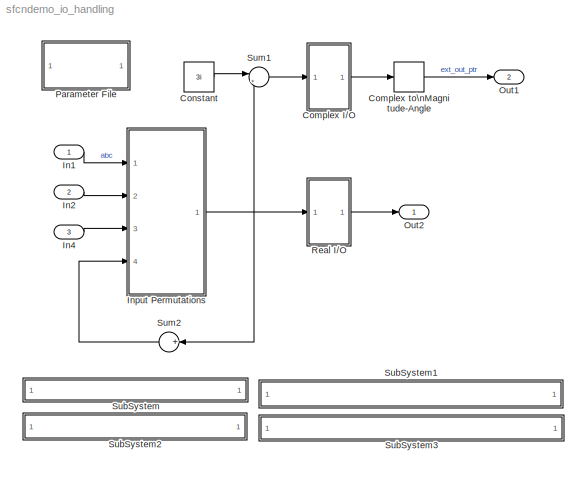
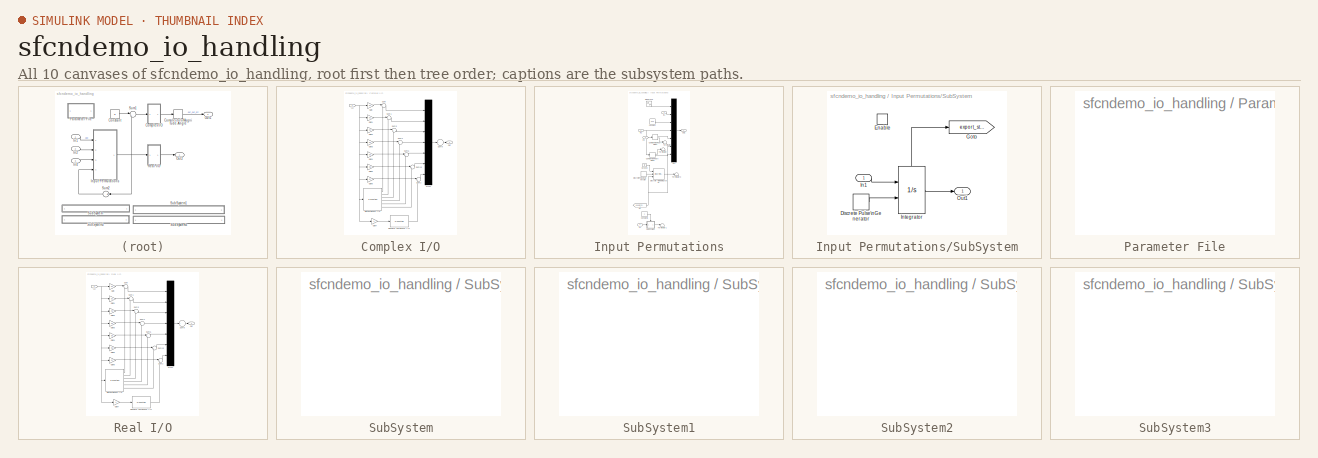
[diagram: thumbnail index - all 10 canvases of the model, root first then tree order]
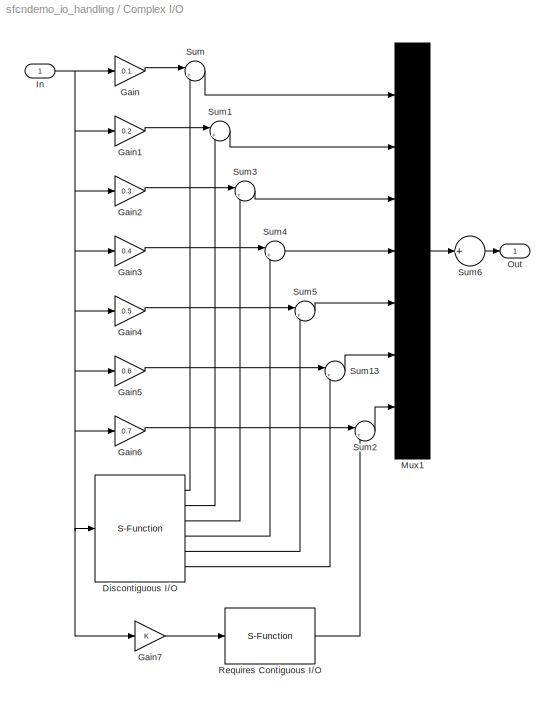
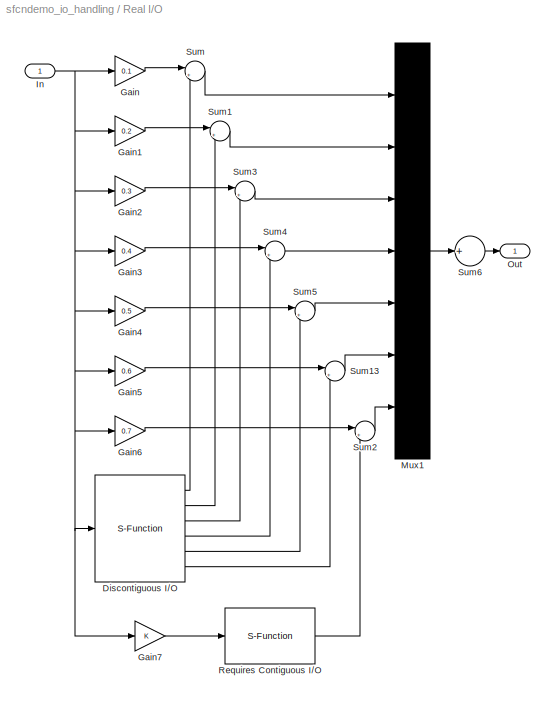
MODEL sfcndemo_io_handling
KIND model
CONFIG PreLoadFcn = t=0;u=[1 2 3 4 5 0 0 0 0 0 0 0 0 0 0];
BLOCK [SubSystem] Complex I//O
  MinAlgLoopOccurrences = off
  Ports = [1, 1]
  PropExecContextAcrossSSBoundary = on
  RTWSystemCode = Auto
  TreatAsAtomicUnit = off
BLOCK [S-Function] Complex I//O/Discontiguous I//O
  FunctionName = sfun_io_handling1
  Ports = [1, 6]
BLOCK [Gain] Complex I//O/Gain
  Gain = 0.1
BLOCK [Gain] Complex I//O/Gain1
  Gain = 0.2
BLOCK [Gain] Complex I//O/Gain2
  Gain = 0.3
BLOCK [Gain] Complex I//O/Gain3
  Gain = 0.4
BLOCK [Gain] Complex I//O/Gain4
  Gain = 0.5
BLOCK [Gain] Complex I//O/Gain5
  Gain = 0.6
BLOCK [Gain] Complex I//O/Gain6
  Gain = 0.7
BLOCK [Gain] Complex I//O/Gain7
BLOCK [Inport] Complex I//O/In
  IconDisplay = Port number
  LatchInput = off
  Port = 1
BLOCK [Mux] Complex I//O/Mux1
  DisplayOption = bar
  Inputs = 7
  Ports = [7, 1]
BLOCK [Outport] Complex I//O/Out
  IconDisplay = Port number
BLOCK [S-Function] Complex I//O/Requires Contiguous I//O
  FunctionName = sfun_io_handling2
  Ports = [1, 1]
BLOCK [Sum] Complex I//O/Sum
  IconShape = round
  Inputs = |+-
  Ports = [2, 1]
BLOCK [Sum] Complex I//O/Sum1
  IconShape = round
  Inputs = |+-
  Ports = [2, 1]
BLOCK [Sum] Complex I//O/Sum13
  IconShape = round
  Inputs = |+-
  Ports = [2, 1]
BLOCK [Sum] Complex I//O/Sum2
  IconShape = round
  Inputs = |+-
  Ports = [2, 1]
BLOCK [Sum] Complex I//O/Sum3
  IconShape = round
  Inputs = |+-
  Ports = [2, 1]
BLOCK [Sum] Complex I//O/Sum4
  IconShape = round
  Inputs = |+-
  Ports = [2, 1]
BLOCK [Sum] Complex I//O/Sum5
  IconShape = round
  Inputs = |+-
  Ports = [2, 1]
BLOCK [Sum] Complex I//O/Sum6
  IconShape = round
  Inputs = +
  Ports = [1, 1]
BLOCK [ComplexToMagnitudeAngle] Complex to\nMagnitude-Angle
  Output = Magnitude
  Ports = [1, 1]
BLOCK [Constant] Constant
  Value = 3i
BLOCK [Inport] In1
  IconDisplay = Port number
  LatchInput = off
  Port = 1
  PortDimensions = 5
BLOCK [Inport] In2
  IconDisplay = Port number
  LatchInput = off
  Port = 2
  PortDimensions = 5
BLOCK [Inport] In4
  IconDisplay = Port number
  LatchInput = off
  Port = 3
  PortDimensions = 5
  SignalType = complex
BLOCK [SubSystem] Input Permutations
  MinAlgLoopOccurrences = off
  Ports = [4, 1]
  PropExecContextAcrossSSBoundary = on
  RTWSystemCode = Auto
  TreatAsAtomicUnit = off
BLOCK [ComplexToRealImag] Input Permutations/Complex to\nReal-Imag1
  Output = Real and imag
  Ports = [1, 2]
BLOCK [ComplexToRealImag] Input Permutations/Complex to\nReal-Imag2
  Output = Real and imag
  Ports = [1, 2]
BLOCK [Constant] Input Permutations/Constant
  Value = 6:10
BLOCK [Constant] Input Permutations/Constant1
BLOCK [DiscretePulseGenerator] Input Permutations/Discrete Pulse\nGenerator
  Ports = [0, 1]
BLOCK [DiscreteIntegrator] Input Permutations/Discrete-Time\nIntegrator
  ExternalReset = either
  ICPrevOutput = DiscIntNeverNeededParam
  ICPrevScaledInput = DiscIntNeverNeededParam
  InitialCondition = -5:-1
  InitialConditionSource = external
  IntegratorMethod = Integration: Forward Euler
  Ports = [3, 1]
BLOCK [Ground] Input Permutations/Ground
BLOCK [Inport] Input Permutations/In1
  IconDisplay = Port number
  LatchInput = off
  Port = 1
BLOCK [Inport] Input Permutations/In2
  IconDisplay = Port number
  LatchInput = off
  Port = 2
BLOCK [Inport] Input Permutations/In3
  IconDisplay = Port number
  LatchInput = off
  Port = 3
BLOCK [Inport] Input Permutations/In4
  IconDisplay = Port number
  LatchInput = off
  Port = 4
BLOCK [Mux] Input Permutations/Mux
  DisplayOption = bar
  Inputs = 7
  Ports = [7, 1]
BLOCK [Outport] Input Permutations/Out1
  IconDisplay = Port number
BLOCK [Sin] Input Permutations/Sine Wave
  Amplitude = 1:5
  Ports = [0, 1]
  SampleTime = 0
  SineType = Time based
BLOCK [SubSystem] Input Permutations/SubSystem
  MinAlgLoopOccurrences = off
  Ports = [1, 1, 1]
  PropExecContextAcrossSSBoundary = on
  RTWSystemCode = Auto
  TreatAsAtomicUnit = on
BLOCK [DiscretePulseGenerator] Input Permutations/SubSystem/Discrete Pulse\nGenerator
  Ports = [0, 1]
BLOCK [EnablePort] Input Permutations/SubSystem/Enable
  Ports = []
BLOCK [Goto] Input Permutations/SubSystem/Goto
  DialogController = Simulink.DDGSource
  GotoTag = export_state
  TagVisibility = global
BLOCK [Inport] Input Permutations/SubSystem/In1
  IconDisplay = Port number
  LatchInput = off
  Port = 1
BLOCK [Integrator] Input Permutations/SubSystem/Integrator
  ExternalReset = either
  InitialCondition = -5:-1
  Ports = [2, 1, 0, 0, 1]
  ShowStatePort = on
BLOCK [Outport] Input Permutations/SubSystem/Out1
  IconDisplay = Port number
BLOCK [Terminator] Input Permutations/Terminator
BLOCK [Terminator] Input Permutations/Terminator1
BLOCK [Terminator] Input Permutations/Terminator2
BLOCK [Terminator] Input Permutations/Terminator3
BLOCK [From] Input Permutations/w0
  DialogController = Simulink.DDGSource
  GotoTag = export_state
BLOCK [Outport] Out1
  IconDisplay = Port number
  Port = 2
BLOCK [Outport] Out2
  IconDisplay = Port number
BLOCK [SubSystem] Parameter File
  CopyFcn = cccopyfcn(gcb)
  MaskDescription = Add code to model .prm file
  MaskDisplay = disp('Parameter\\nFile');
  MaskHelp = This parameter file block contains text fields to insert custom user code at the top and bottom of model.prm file.
  MaskIconFrame = on
  MaskIconOpaque = on
  MaskIconRotate = none
  MaskIconUnits = autoscale
  MaskType = Parameter File
  MinAlgLoopOccurrences = off
  OpenFcn = ccopenfcn('Parameter File')
  Ports = []
  PropExecContextAcrossSSBoundary = on
  RTWSystemCode = Auto
  TreatAsAtomicUnit = off
BLOCK [SubSystem] Real I//O
  MinAlgLoopOccurrences = off
  Ports = [1, 1]
  PropExecContextAcrossSSBoundary = on
  RTWSystemCode = Auto
  TreatAsAtomicUnit = off
BLOCK [S-Function] Real I//O/Discontiguous I//O
  FunctionName = sfun_io_handling1
  Ports = [1, 6]
BLOCK [Gain] Real I//O/Gain
  Gain = 0.1
BLOCK [Gain] Real I//O/Gain1
  Gain = 0.2
BLOCK [Gain] Real I//O/Gain2
  Gain = 0.3
BLOCK [Gain] Real I//O/Gain3
  Gain = 0.4
BLOCK [Gain] Real I//O/Gain4
  Gain = 0.5
BLOCK [Gain] Real I//O/Gain5
  Gain = 0.6
BLOCK [Gain] Real I//O/Gain6
  Gain = 0.7
BLOCK [Gain] Real I//O/Gain7
BLOCK [Inport] Real I//O/In
  IconDisplay = Port number
  LatchInput = off
  Port = 1
BLOCK [Mux] Real I//O/Mux1
  DisplayOption = bar
  Inputs = 7
  Ports = [7, 1]
BLOCK [Outport] Real I//O/Out
  IconDisplay = Port number
BLOCK [S-Function] Real I//O/Requires Contiguous I//O
  FunctionName = sfun_io_handling2
  Ports = [1, 1]
BLOCK [Sum] Real I//O/Sum
  IconShape = round
  Inputs = |+-
  Ports = [2, 1]
BLOCK [Sum] Real I//O/Sum1
  IconShape = round
  Inputs = |+-
  Ports = [2, 1]
BLOCK [Sum] Real I//O/Sum13
  IconShape = round
  Inputs = |+-
  Ports = [2, 1]
BLOCK [Sum] Real I//O/Sum2
  IconShape = round
  Inputs = |+-
  Ports = [2, 1]
BLOCK [Sum] Real I//O/Sum3
  IconShape = round
  Inputs = |+-
  Ports = [2, 1]
BLOCK [Sum] Real I//O/Sum4
  IconShape = round
  Inputs = |+-
  Ports = [2, 1]
BLOCK [Sum] Real I//O/Sum5
  IconShape = round
  Inputs = |+-
  Ports = [2, 1]
BLOCK [Sum] Real I//O/Sum6
  IconShape = round
  Inputs = +
  Ports = [1, 1]
BLOCK [SubSystem] SubSystem
  MaskDisplay = disp('matlabroot<path>');
  MaskIconFrame = on
  MaskIconOpaque = on
  MaskIconRotate = none
  MaskIconUnits = autoscale
  MinAlgLoopOccurrences = off
  OpenFcn = edit(fullfile(matlabroot,'simulink','src','sfun_io_handling1.c'))
  Ports = []
  PropExecContextAcrossSSBoundary = on
  RTWSystemCode = Auto
  TreatAsAtomicUnit = off
BLOCK [SubSystem] SubSystem1
  MaskDisplay = disp('matlabroot<path>');
  MaskIconFrame = on
  MaskIconOpaque = on
  MaskIconRotate = none
  MaskIconUnits = autoscale
  MinAlgLoopOccurrences = off
  OpenFcn = edit(fullfile(matlabroot,'toolbox','simulink','blocks','tlc_c','sfun_io_handling1.tlc'))
  Ports = []
  PropExecContextAcrossSSBoundary = on
  RTWSystemCode = Auto
  TreatAsAtomicUnit = off
BLOCK [SubSystem] SubSystem2
  MaskDisplay = disp('matlabroot<path>');
  MaskIconFrame = on
  MaskIconOpaque = on
  MaskIconRotate = none
  MaskIconUnits = autoscale
  MinAlgLoopOccurrences = off
  OpenFcn = edit(fullfile(matlabroot,'simulink','src','sfun_io_handling2.c'))
  Ports = []
  PropExecContextAcrossSSBoundary = on
  RTWSystemCode = Auto
  TreatAsAtomicUnit = off
BLOCK [SubSystem] SubSystem3
  MaskDisplay = disp('matlabroot<path>');
  MaskIconFrame = on
  MaskIconOpaque = on
  MaskIconRotate = none
  MaskIconUnits = autoscale
  MinAlgLoopOccurrences = off
  OpenFcn = edit(fullfile(matlabroot,'toolbox','simulink','blocks','tlc_c','sfun_io_handling2.tlc'))
  Ports = []
  PropExecContextAcrossSSBoundary = on
  RTWSystemCode = Auto
  TreatAsAtomicUnit = off
BLOCK [Sum] Sum1
  IconShape = round
  Inputs = |+-
  Ports = [2, 1]
BLOCK [Sum] Sum2
  IconShape = round
  Inputs = +
  Ports = [1, 1]
LINE Complex I//O/Discontiguous I//O:1 -> Complex I//O/Sum:2
LINE Complex I//O/Discontiguous I//O:2 -> Complex I//O/Sum1:2
LINE Complex I//O/Discontiguous I//O:3 -> Complex I//O/Sum3:2
LINE Complex I//O/Discontiguous I//O:4 -> Complex I//O/Sum4:2
LINE Complex I//O/Discontiguous I//O:5 -> Complex I//O/Sum5:2
LINE Complex I//O/Discontiguous I//O:6 -> Complex I//O/Sum13:2
LINE Complex I//O/Gain1:1 -> Complex I//O/Sum1:1
LINE Complex I//O/Gain2:1 -> Complex I//O/Sum3:1
LINE Complex I//O/Gain3:1 -> Complex I//O/Sum4:1
LINE Complex I//O/Gain4:1 -> Complex I//O/Sum5:1
LINE Complex I//O/Gain5:1 -> Complex I//O/Sum13:1
LINE Complex I//O/Gain6:1 -> Complex I//O/Sum2:1
LINE Complex I//O/Gain7:1 -> Complex I//O/Requires Contiguous I//O:1
LINE Complex I//O/Gain:1 -> Complex I//O/Sum:1
NET Complex I//O/In:1 -> Complex I//O/Discontiguous I//O:1, Complex I//O/Gain1:1, Complex I//O/Gain2:1, Complex I//O/Gain3:1, Complex I//O/Gain4:1, Complex I//O/Gain5:1, Complex I//O/Gain6:1, Complex I//O/Gain7:1, Complex I//O/Gain:1
LINE Complex I//O/Mux1:1 -> Complex I//O/Sum6:1
LINE Complex I//O/Requires Contiguous I//O:1 -> Complex I//O/Sum2:2
LINE Complex I//O/Sum13:1 -> Complex I//O/Mux1:6
LINE Complex I//O/Sum1:1 -> Complex I//O/Mux1:2
LINE Complex I//O/Sum2:1 -> Complex I//O/Mux1:7
LINE Complex I//O/Sum3:1 -> Complex I//O/Mux1:3
LINE Complex I//O/Sum4:1 -> Complex I//O/Mux1:4
LINE Complex I//O/Sum5:1 -> Complex I//O/Mux1:5
LINE Complex I//O/Sum6:1 -> Complex I//O/Out:1
LINE Complex I//O/Sum:1 -> Complex I//O/Mux1:1
LINE Complex I//O:1 -> Complex to\nMagnitude-Angle:1
LINE Complex to\nMagnitude-Angle:1 -> Out1:1
LINE Constant:1 -> Sum1:1
LINE In1:1 -> Input Permutations:1
LINE In2:1 -> Input Permutations:2
LINE In4:1 -> Input Permutations:3
LINE Input Permutations/Complex to\nReal-Imag1:1 -> Input Permutations/Mux:5
LINE Input Permutations/Complex to\nReal-Imag1:2 -> Input Permutations/Terminator:1
LINE Input Permutations/Complex to\nReal-Imag2:1 -> Input Permutations/Terminator2:1
LINE Input Permutations/Complex to\nReal-Imag2:2 -> Input Permutations/Mux:6
LINE Input Permutations/Constant1:1 -> Input Permutations/SubSystem:enable
LINE Input Permutations/Constant:1 -> Input Permutations/Mux:3
LINE Input Permutations/Discrete Pulse\nGenerator:1 -> Input Permutations/Discrete-Time\nIntegrator:2
LINE Input Permutations/Discrete-Time\nIntegrator:1 -> Input Permutations/Terminator3:1
LINE Input Permutations/Ground:1 -> Input Permutations/Discrete-Time\nIntegrator:1
LINE Input Permutations/In1:1 -> Input Permutations/Mux:2
NET Input Permutations/In2:1 -> Input Permutations/Complex to\nReal-Imag2:1, Input Permutations/Mux:4
LINE Input Permutations/In3:1 -> Input Permutations/Complex to\nReal-Imag1:1
LINE Input Permutations/In4:1 -> Input Permutations/SubSystem:1
LINE Input Permutations/Mux:1 -> Input Permutations/Out1:1
LINE Input Permutations/Sine Wave:1 -> Input Permutations/Mux:1
LINE Input Permutations/SubSystem/Discrete Pulse\nGenerator:1 -> Input Permutations/SubSystem/Integrator:2
LINE Input Permutations/SubSystem/In1:1 -> Input Permutations/SubSystem/Integrator:1
LINE Input Permutations/SubSystem/Integrator:1 -> Input Permutations/SubSystem/Out1:1
LINE Input Permutations/SubSystem/Integrator:state -> Input Permutations/SubSystem/Goto:1
LINE Input Permutations/SubSystem:1 -> Input Permutations/Terminator1:1
NET Input Permutations/w0:1 -> Input Permutations/Discrete-Time\nIntegrator:3, Input Permutations/Mux:7
NET Input Permutations:1 -> Real I//O:1, Sum1:2, Sum2:1
LINE Real I//O/Discontiguous I//O:1 -> Real I//O/Sum:2
LINE Real I//O/Discontiguous I//O:2 -> Real I//O/Sum1:2
LINE Real I//O/Discontiguous I//O:3 -> Real I//O/Sum3:2
LINE Real I//O/Discontiguous I//O:4 -> Real I//O/Sum4:2
LINE Real I//O/Discontiguous I//O:5 -> Real I//O/Sum5:2
LINE Real I//O/Discontiguous I//O:6 -> Real I//O/Sum13:2
LINE Real I//O/Gain1:1 -> Real I//O/Sum1:1
LINE Real I//O/Gain2:1 -> Real I//O/Sum3:1
LINE Real I//O/Gain3:1 -> Real I//O/Sum4:1
LINE Real I//O/Gain4:1 -> Real I//O/Sum5:1
LINE Real I//O/Gain5:1 -> Real I//O/Sum13:1
LINE Real I//O/Gain6:1 -> Real I//O/Sum2:1
LINE Real I//O/Gain7:1 -> Real I//O/Requires Contiguous I//O:1
LINE Real I//O/Gain:1 -> Real I//O/Sum:1
NET Real I//O/In:1 -> Real I//O/Discontiguous I//O:1, Real I//O/Gain1:1, Real I//O/Gain2:1, Real I//O/Gain3:1, Real I//O/Gain4:1, Real I//O/Gain5:1, Real I//O/Gain6:1, Real I//O/Gain7:1, Real I//O/Gain:1
LINE Real I//O/Mux1:1 -> Real I//O/Sum6:1
LINE Real I//O/Requires Contiguous I//O:1 -> Real I//O/Sum2:2
LINE Real I//O/Sum13:1 -> Real I//O/Mux1:6
LINE Real I//O/Sum1:1 -> Real I//O/Mux1:2
LINE Real I//O/Sum2:1 -> Real I//O/Mux1:7
LINE Real I//O/Sum3:1 -> Real I//O/Mux1:3
LINE Real I//O/Sum4:1 -> Real I//O/Mux1:4
LINE Real I//O/Sum5:1 -> Real I//O/Mux1:5
LINE Real I//O/Sum6:1 -> Real I//O/Out:1
LINE Real I//O/Sum:1 -> Real I//O/Mux1:1
LINE Real I//O:1 -> Out2:1
LINE Sum1:1 -> Complex I//O:1
LINE Sum2:1 -> Input Permutations:4
note: NET lines group one-source signal fan-out (src -> all destinations, sorted); 1:1 wires keep LINE
note: 4 file-system paths scrubbed to <path> (not preserved elsewhere — flat text is the only slx artifact)
